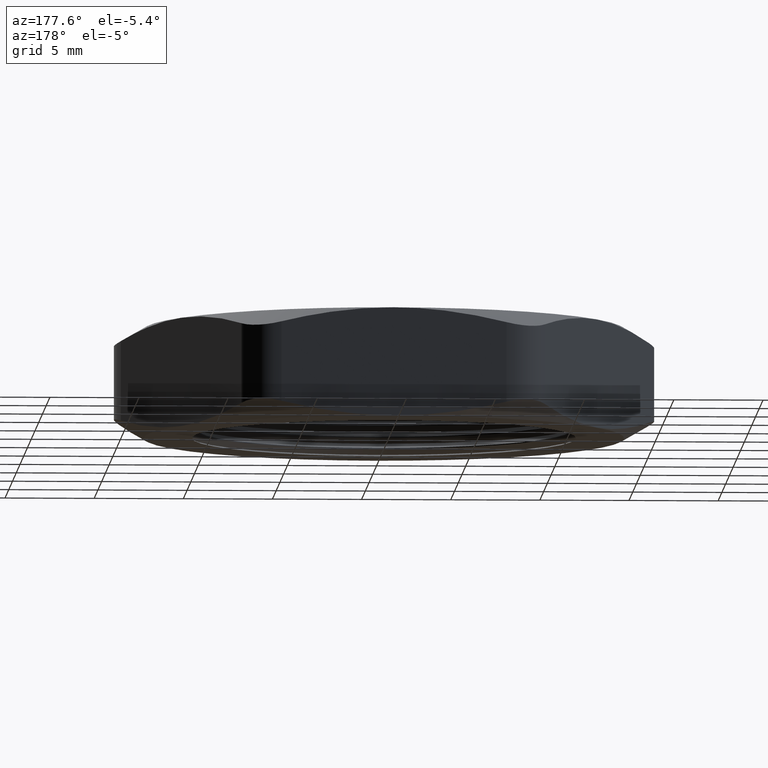
[diagram: clean part render]
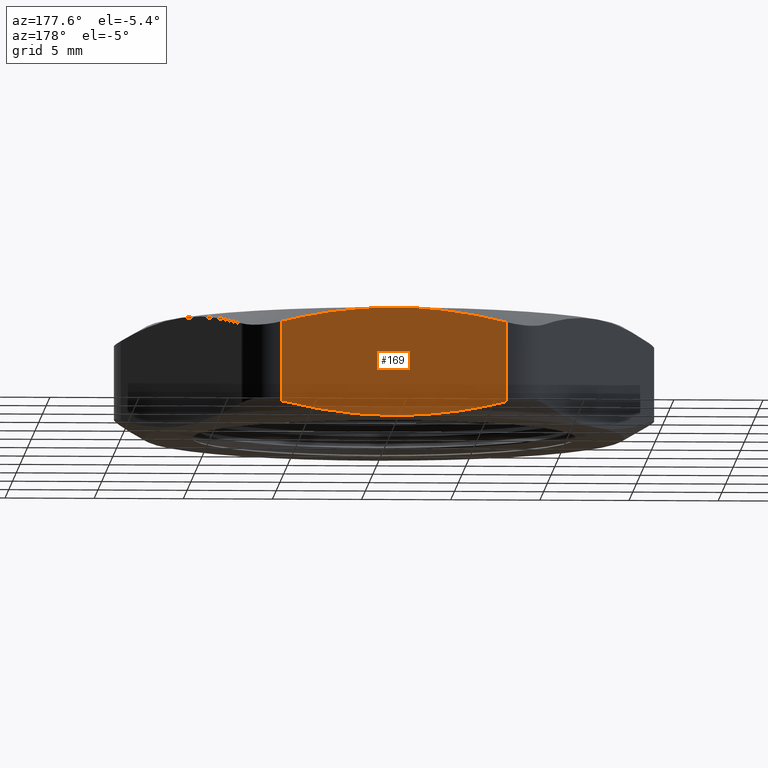
[diagram: same view with one face highlighted and labeled with its STEP entity id]
A machine part, auxiliary view. The second image highlights one B-rep face of the part: STEP entity #169.
In plain terms, the highlighted planar face has unit normal (0, -1, 0).
Its self-contained STEP definition (entity closure, byte-faithful):
#169 = ADVANCED_FACE ( 'NONE', ( #508 ), #507, .F. ) ;
#503 = DIRECTION ( 'NONE',  ( 1.000000000000000000, 1.115966868769245800E-016, 0.0000000000000000000 ) ) ;
#504 = DIRECTION ( 'NONE',  ( 1.115966868769245800E-016, -1.000000000000000000, 0.0000000000000000000 ) ) ;
#505 = CARTESIAN_POINT ( 'NONE',  ( 0.3059956426705019400, 0.5300000000000002500, 0.2399999999999999900 ) ) ;
#506 = AXIS2_PLACEMENT_3D ( 'NONE', #505, #504, #503 ) ;
#507 = PLANE ( 'NONE',  #506 ) ;
#508 = FACE_OUTER_BOUND ( 'NONE', #2155, .T. ) ;
#1262 = B_SPLINE_CURVE_WITH_KNOTS ( 'NONE', 3,
 ( #1317, #1316, #1315, #1314, #1313, #1312 ),
 .UNSPECIFIED., .F., .F.,
 ( 4, 2, 4 ),
 ( 0.04003326252540465700, 0.04320879708514143600, 0.04638433164487821400 ),
 .UNSPECIFIED. ) ;
#1267 = CARTESIAN_POINT ( 'NONE',  ( 0.2482606157515392400, 0.5300000000000002500, 0.03190638126214320700 ) ) ;
#1268 = CARTESIAN_POINT ( 'NONE',  ( 0.2079115416018540400, 0.5300000000000002500, 0.02202473383781758400 ) ) ;
#1269 = CARTESIAN_POINT ( 'NONE',  ( 0.1670878377904242200, 0.5300000000000002500, 0.01399942999800623200 ) ) ;
#1270 = CARTESIAN_POINT ( 'NONE',  ( 0.08415995574332800500, 0.5300000000000003600, 0.002956938485901076900 ) ) ;
#1271 = CARTESIAN_POINT ( 'NONE',  ( 0.04181844682058769700, 0.5300000000000001400, -2.130921469667314100E-017 ) ) ;
#1272 = CARTESIAN_POINT ( 'NONE',  ( -5.914624404477003900E-017, 0.5300000000000001400, 0.0000000000000000000 ) ) ;
#1276 = CARTESIAN_POINT ( 'NONE',  ( 0.2482606157515392700, 0.5300000000000002500, 0.2080936187378568100 ) ) ;
#1277 = B_SPLINE_CURVE_WITH_KNOTS ( 'NONE', 3,
 ( #1272, #1271, #1270, #1269, #1268, #1267 ),
 .UNSPECIFIED., .F., .F.,
 ( 4, 2, 4 ),
 ( 0.02249947208066283000, 0.02567613828463382100, 0.02885280448860481200 ),
 .UNSPECIFIED. ) ;
#1278 = CARTESIAN_POINT ( 'NONE',  ( 0.2482606157515392400, 0.5300000000000002500, 0.03190638126214320700 ) ) ;
#1279 = DIRECTION ( 'NONE',  ( 0.0000000000000000000, 0.0000000000000000000, -1.000000000000000000 ) ) ;
#1280 = VECTOR ( 'NONE', #1279, 39.37007874015748100 ) ;
#1281 = CARTESIAN_POINT ( 'NONE',  ( 0.2482606157515393200, 0.5300000000000002500, 0.2399999999999999900 ) ) ;
#1282 = LINE ( 'NONE', #1281, #1280 ) ;
#1283 = CARTESIAN_POINT ( 'NONE',  ( -0.2482606157515391000, 0.5300000000000001400, 0.03190638126214313100 ) ) ;
#1284 = CARTESIAN_POINT ( 'NONE',  ( -0.2482606157515391800, 0.5300000000000001400, 0.2080936187378568700 ) ) ;
#1301 = DIRECTION ( 'NONE',  ( 0.0000000000000000000, 0.0000000000000000000, 1.000000000000000000 ) ) ;
#1302 = VECTOR ( 'NONE', #1301, 39.37007874015748100 ) ;
#1303 = CARTESIAN_POINT ( 'NONE',  ( -0.2482606157515391800, 0.5300000000000001400, 0.2080936187378568700 ) ) ;
#1304 = CARTESIAN_POINT ( 'NONE',  ( -0.2073285774621217400, 0.5300000000000001400, 0.2181180363796226000 ) ) ;
#1305 = CARTESIAN_POINT ( 'NONE',  ( -0.1662082438519786900, 0.5300000000000001400, 0.2261496826282090300 ) ) ;
#1306 = CARTESIAN_POINT ( 'NONE',  ( -0.08348449454732814700, 0.5300000000000002500, 0.2371004096374707300 ) ) ;
#1307 = CARTESIAN_POINT ( 'NONE',  ( -0.04187923722122022200, 0.5300000000000001400, 0.2400000000000000700 ) ) ;
#1308 = CARTESIAN_POINT ( 'NONE',  ( -5.914624404477003900E-017, 0.5300000000000001400, 0.2399999999999999900 ) ) ;
#1309 = CARTESIAN_POINT ( 'NONE',  ( -0.2482606157515391500, 0.5300000000000001400, 0.2399999999999999900 ) ) ;
#1310 = LINE ( 'NONE', #1309, #1302 ) ;
#1311 = B_SPLINE_CURVE_WITH_KNOTS ( 'NONE', 3,
 ( #1308, #1307, #1306, #1305, #1304, #1303 ),
 .UNSPECIFIED., .F., .F.,
 ( 4, 2, 4 ),
 ( 0.04638433164487821400, 0.04956448239753425500, 0.05274463315019030400 ),
 .UNSPECIFIED. ) ;
#1312 = CARTESIAN_POINT ( 'NONE',  ( -5.914624404477003900E-017, 0.5300000000000001400, 0.2399999999999999900 ) ) ;
#1313 = CARTESIAN_POINT ( 'NONE',  ( 0.04181844682058769700, 0.5300000000000001400, 0.2400000000000000700 ) ) ;
#1314 = CARTESIAN_POINT ( 'NONE',  ( 0.08415995574332793500, 0.5300000000000001400, 0.2370430615140989800 ) ) ;
#1315 = CARTESIAN_POINT ( 'NONE',  ( 0.1670878377904241900, 0.5300000000000002500, 0.2260005700019938900 ) ) ;
#1316 = CARTESIAN_POINT ( 'NONE',  ( 0.2079115416018539900, 0.5300000000000001400, 0.2179752661621824100 ) ) ;
#1317 = CARTESIAN_POINT ( 'NONE',  ( 0.2482606157515392700, 0.5300000000000002500, 0.2080936187378568100 ) ) ;
#1318 = CARTESIAN_POINT ( 'NONE',  ( -5.914624404477003900E-017, 0.5300000000000001400, 0.2399999999999999900 ) ) ;
#1328 = CARTESIAN_POINT ( 'NONE',  ( -5.914624404477003900E-017, 0.5300000000000001400, 0.0000000000000000000 ) ) ;
#1329 = CARTESIAN_POINT ( 'NONE',  ( -0.04187923722122018800, 0.5300000000000001400, -1.654048589913909200E-017 ) ) ;
#1330 = CARTESIAN_POINT ( 'NONE',  ( -0.08348449454732789800, 0.5300000000000002500, 0.002899590362529364200 ) ) ;
#1331 = CARTESIAN_POINT ( 'NONE',  ( -0.1662082438519785500, 0.5300000000000002500, 0.01385031737179089600 ) ) ;
#1332 = CARTESIAN_POINT ( 'NONE',  ( -0.2073285774621217200, 0.5300000000000001400, 0.02188196362037739600 ) ) ;
#1333 = CARTESIAN_POINT ( 'NONE',  ( -0.2482606157515391000, 0.5300000000000001400, 0.03190638126214313100 ) ) ;
#1334 = B_SPLINE_CURVE_WITH_KNOTS ( 'NONE', 3,
 ( #1333, #1332, #1331, #1330, #1329, #1328 ),
 .UNSPECIFIED., .F., .F.,
 ( 4, 2, 4 ),
 ( 0.01613690399679807600, 0.01931818803873045300, 0.02249947208066283000 ),
 .UNSPECIFIED. ) ;
#1378 = CARTESIAN_POINT ( 'NONE',  ( -5.914624404477003900E-017, 0.5300000000000001400, 0.0000000000000000000 ) ) ;
#2150 = ORIENTED_EDGE ( 'NONE', *, *, #2174, .F. ) ;
#2151 = VERTEX_POINT ( 'NONE', #1284 ) ;
#2152 = VERTEX_POINT ( 'NONE', #1283 ) ;
#2153 = ORIENTED_EDGE ( 'NONE', *, *, #2177, .T. ) ;
#2155 = EDGE_LOOP ( 'NONE', ( #2185, #2153, #2150, #2172, #2161, #2164 ) ) ;
#2159 = EDGE_CURVE ( 'NONE', #2163, #2160, #1282, .T. ) ;
#2160 = VERTEX_POINT ( 'NONE', #1278 ) ;
#2161 = ORIENTED_EDGE ( 'NONE', *, *, #2159, .T. ) ;
#2162 = EDGE_CURVE ( 'NONE', #2216, #2160, #1277, .T. ) ;
#2163 = VERTEX_POINT ( 'NONE', #1276 ) ;
#2164 = ORIENTED_EDGE ( 'NONE', *, *, #2162, .F. ) ;
#2170 = EDGE_CURVE ( 'NONE', #2163, #2173, #1262, .T. ) ;
#2172 = ORIENTED_EDGE ( 'NONE', *, *, #2170, .F. ) ;
#2173 = VERTEX_POINT ( 'NONE', #1318 ) ;
#2174 = EDGE_CURVE ( 'NONE', #2173, #2151, #1311, .T. ) ;
#2177 = EDGE_CURVE ( 'NONE', #2152, #2151, #1310, .T. ) ;
#2184 = EDGE_CURVE ( 'NONE', #2152, #2216, #1334, .T. ) ;
#2185 = ORIENTED_EDGE ( 'NONE', *, *, #2184, .F. ) ;
#2216 = VERTEX_POINT ( 'NONE', #1378 ) ;